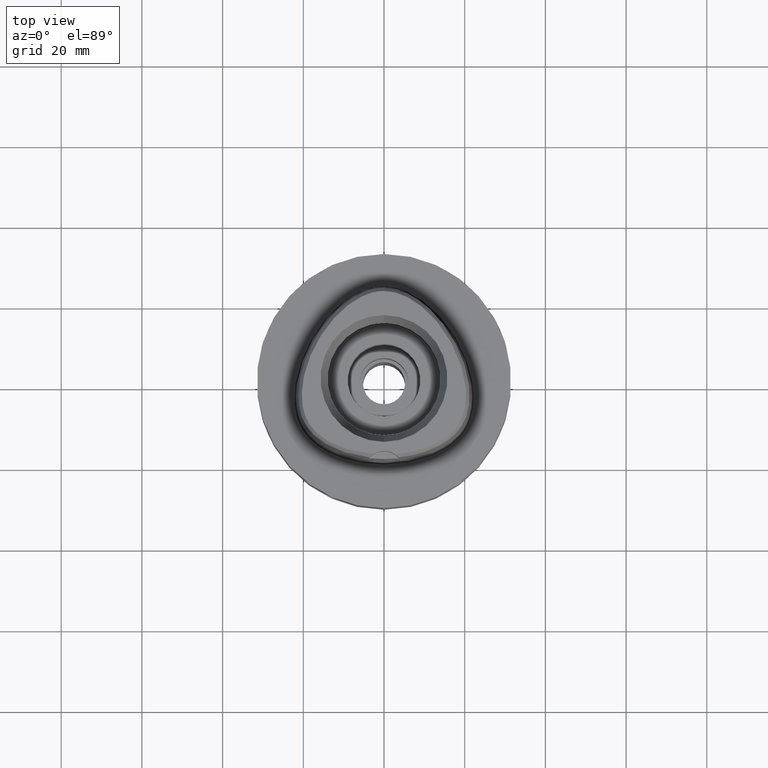
[diagram: clean part render]
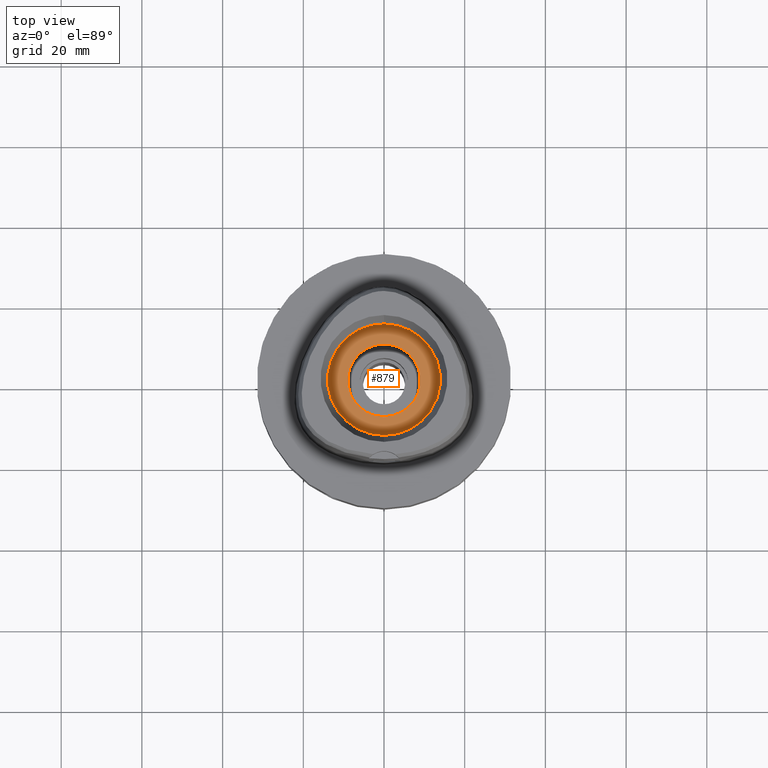
[diagram: same view with one face highlighted and labeled with its STEP entity id]
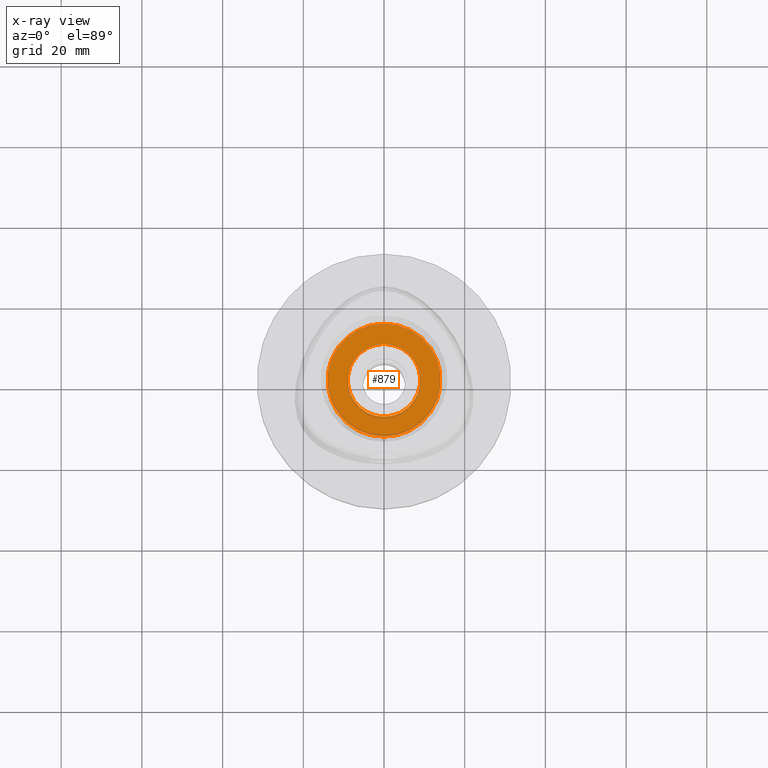
[diagram: x-ray of the same camera — body ghosted, the highlighted face saturated]
A machine part, top view. The second image highlights one B-rep face of the part: STEP entity #879.
The next image is the same camera in x-ray: the body ghosted, the highlighted face saturated — about 0% of this face is hidden behind the body in this view.
In plain terms, the highlighted planar face has unit normal (0, 0, -1).
Its self-contained STEP definition (entity closure, byte-faithful):
#55 = ORIENTED_EDGE ( 'NONE', *, *, #3898, .F. ) ;
#64 = AXIS2_PLACEMENT_3D ( 'NONE', #3298, #1357, #2030 ) ;
#65 = AXIS2_PLACEMENT_3D ( 'NONE', #3471, #3046, #3545 ) ;
#225 = AXIS2_PLACEMENT_3D ( 'NONE', #2265, #1460, #1033 ) ;
#695 = FACE_BOUND ( 'NONE', #3675, .T. ) ;
#731 = CIRCLE ( 'NONE', #3632, 14.00000000000000000 ) ;
#738 = VERTEX_POINT ( 'NONE', #2632 ) ;
#851 = CARTESIAN_POINT ( 'NONE',  ( 0.0000000000000000000, 0.0000000000000000000, 11.00000000000000000 ) ) ;
#865 = ORIENTED_EDGE ( 'NONE', *, *, #1609, .F. ) ;
#879 = ADVANCED_FACE ( 'NONE', ( #5037, #695 ), #2754, .F. ) ;
#1033 = DIRECTION ( 'NONE',  ( 0.0000000000000000000, 1.000000000000000000, 0.0000000000000000000 ) ) ;
#1172 = DIRECTION ( 'NONE',  ( 0.0000000000000000000, 0.0000000000000000000, -1.000000000000000000 ) ) ;
#1357 = DIRECTION ( 'NONE',  ( 0.0000000000000000000, 0.0000000000000000000, 1.000000000000000000 ) ) ;
#1398 = EDGE_LOOP ( 'NONE', ( #865, #1676 ) ) ;
#1460 = DIRECTION ( 'NONE',  ( 0.0000000000000000000, 0.0000000000000000000, 1.000000000000000000 ) ) ;
#1511 = EDGE_CURVE ( 'NONE', #3489, #4531, #2056, .T. ) ;
#1546 = CARTESIAN_POINT ( 'NONE',  ( 0.0000000000000000000, 0.0000000000000000000, 11.00000000000000000 ) ) ;
#1559 = CIRCLE ( 'NONE', #225, 9.000000000000000000 ) ;
#1609 = EDGE_CURVE ( 'NONE', #4531, #3489, #731, .T. ) ;
#1676 = ORIENTED_EDGE ( 'NONE', *, *, #1511, .F. ) ;
#2030 = DIRECTION ( 'NONE',  ( 0.0000000000000000000, -1.000000000000000000, 0.0000000000000000000 ) ) ;
#2039 = DIRECTION ( 'NONE',  ( 0.0000000000000000000, -1.000000000000000000, 0.0000000000000000000 ) ) ;
#2056 = CIRCLE ( 'NONE', #65, 14.00000000000000000 ) ;
#2222 = AXIS2_PLACEMENT_3D ( 'NONE', #1546, #1172, #2700 ) ;
#2265 = CARTESIAN_POINT ( 'NONE',  ( 0.0000000000000000000, 0.0000000000000000000, 11.00000000000000000 ) ) ;
#2632 = CARTESIAN_POINT ( 'NONE',  ( 0.0000000000000000000, 9.000000000000000000, 11.00000000000000000 ) ) ;
#2700 = DIRECTION ( 'NONE',  ( 0.0000000000000000000, -1.000000000000000000, 0.0000000000000000000 ) ) ;
#2754 = PLANE ( 'NONE',  #2222 ) ;
#2831 = EDGE_CURVE ( 'NONE', #738, #4881, #1559, .T. ) ;
#2862 = ORIENTED_EDGE ( 'NONE', *, *, #2831, .F. ) ;
#3046 = DIRECTION ( 'NONE',  ( 0.0000000000000000000, 0.0000000000000000000, -1.000000000000000000 ) ) ;
#3126 = CARTESIAN_POINT ( 'NONE',  ( 0.0000000000000000000, 14.00000000000000000, 11.00000000000000000 ) ) ;
#3298 = CARTESIAN_POINT ( 'NONE',  ( 0.0000000000000000000, 0.0000000000000000000, 11.00000000000000000 ) ) ;
#3471 = CARTESIAN_POINT ( 'NONE',  ( 0.0000000000000000000, 0.0000000000000000000, 11.00000000000000000 ) ) ;
#3489 = VERTEX_POINT ( 'NONE', #3126 ) ;
#3545 = DIRECTION ( 'NONE',  ( 0.0000000000000000000, 1.000000000000000000, 0.0000000000000000000 ) ) ;
#3632 = AXIS2_PLACEMENT_3D ( 'NONE', #851, #4393, #2039 ) ;
#3675 = EDGE_LOOP ( 'NONE', ( #55, #2862 ) ) ;
#3898 = EDGE_CURVE ( 'NONE', #4881, #738, #4779, .T. ) ;
#3947 = CARTESIAN_POINT ( 'NONE',  ( 0.0000000000000000000, -9.000000000000000000, 11.00000000000000000 ) ) ;
#4314 = CARTESIAN_POINT ( 'NONE',  ( 0.0000000000000000000, -14.00000000000000000, 11.00000000000000000 ) ) ;
#4393 = DIRECTION ( 'NONE',  ( 0.0000000000000000000, 0.0000000000000000000, -1.000000000000000000 ) ) ;
#4531 = VERTEX_POINT ( 'NONE', #4314 ) ;
#4779 = CIRCLE ( 'NONE', #64, 9.000000000000000000 ) ;
#4881 = VERTEX_POINT ( 'NONE', #3947 ) ;
#5037 = FACE_OUTER_BOUND ( 'NONE', #1398, .T. ) ;